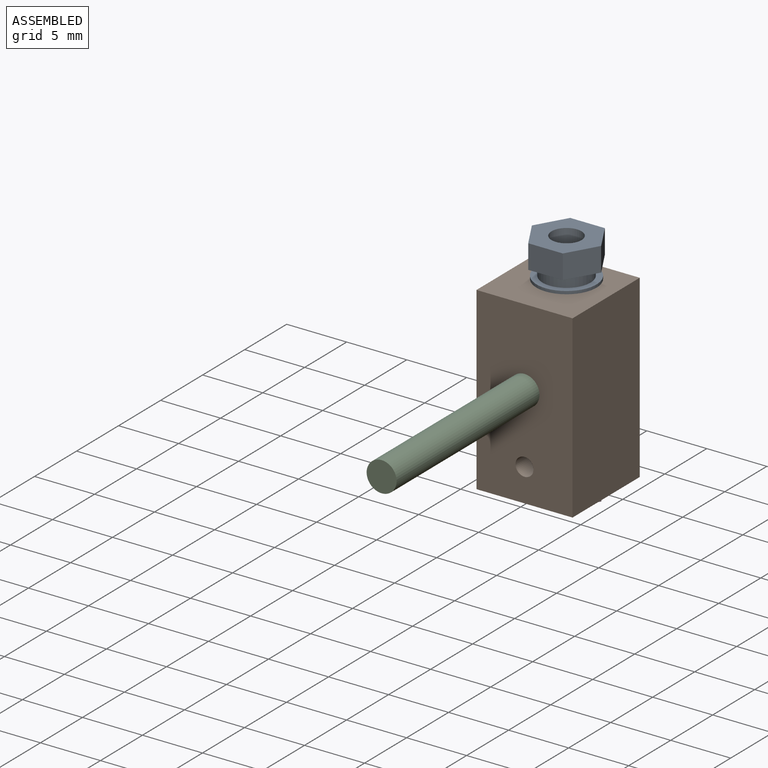
[diagram: assembled view]
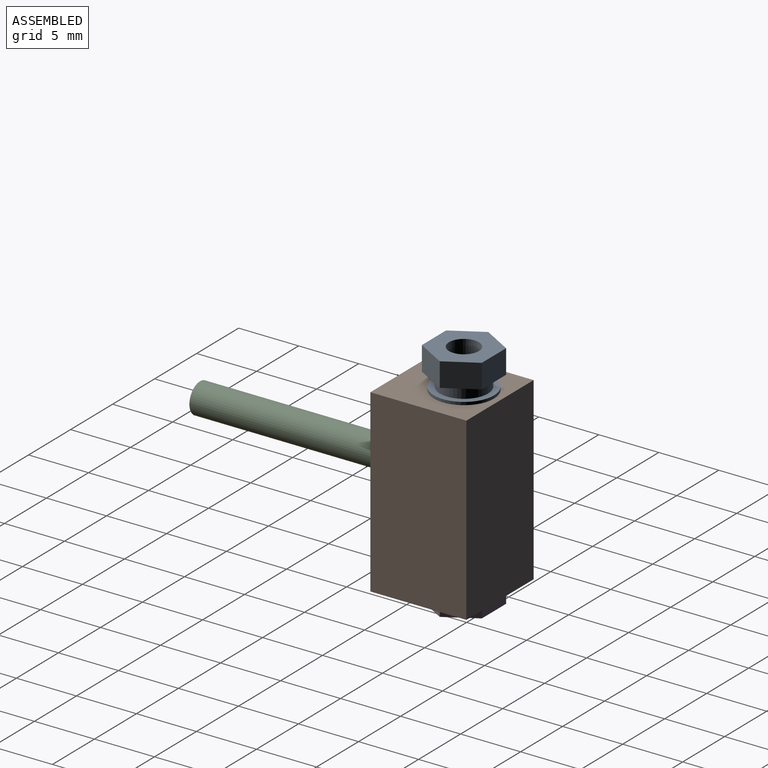
[diagram: assembled view, second angle]
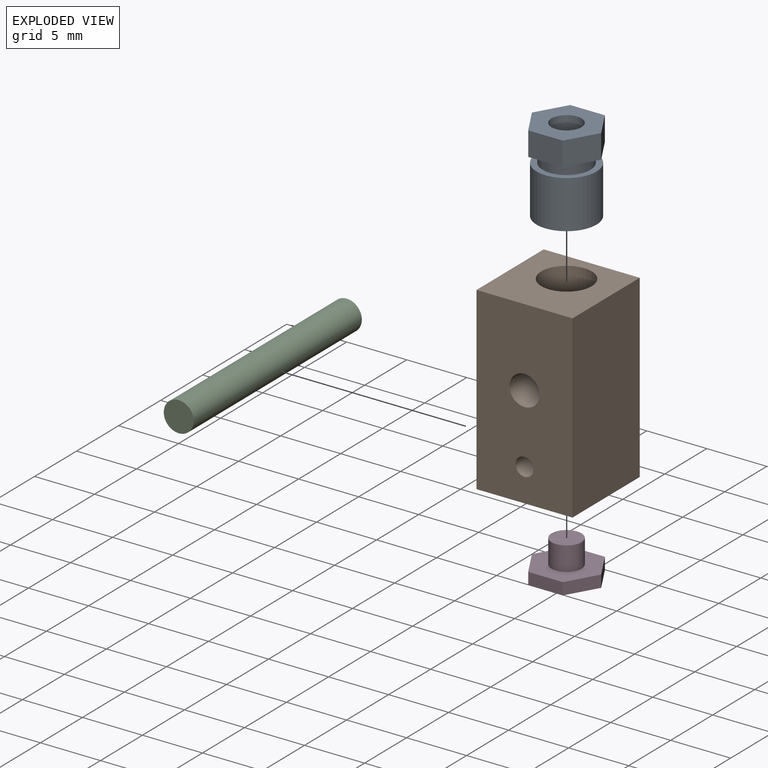
[diagram: exploded view]
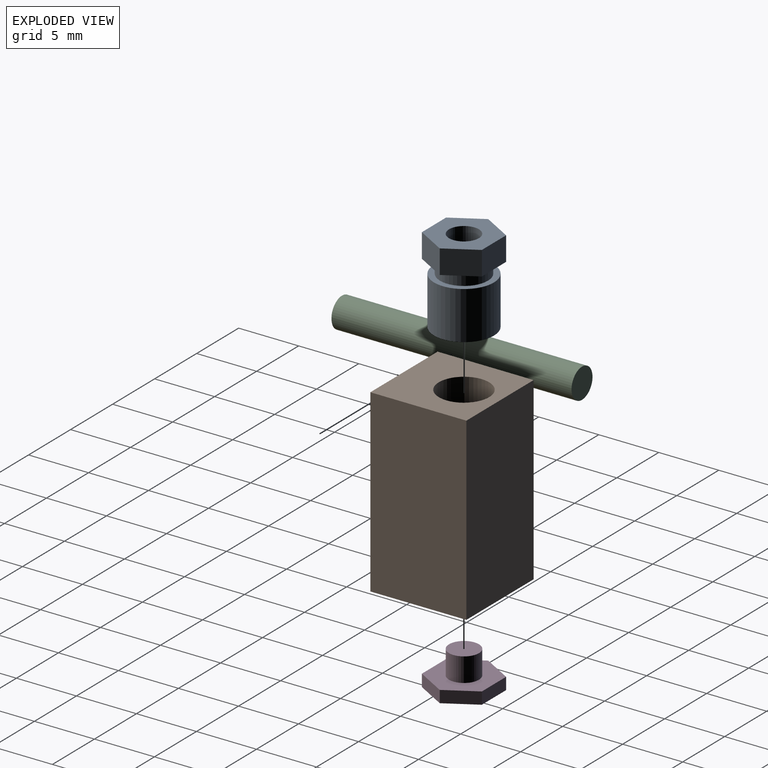
[diagram: exploded view, second angle]
ASSEMBLY  parts=4 mates=3
PART A: 13 faces, bbox 5.8x7x5 mm
  f0: plane 2.89x2mm, normal (0,0,1), area 5.8mm2, adj f1,f5,f6,f7
  f1: plane 2.5x2mm, normal (-0.87,0,0.5), area 5.8mm2, adj f0,f2,f6,f7
  f2: plane 2.5x2mm, normal (-0.87,0,-0.5), area 5.8mm2, adj f1,f3,f6,f7
  f3: plane 2.89x2mm, normal (0,0,-1), area 5.8mm2, adj f2,f4,f6,f7
  f4: plane 2.5x2mm, normal (0.87,0,-0.5), area 5.8mm2, adj f3,f5,f6,f7
  f5: plane 2.5x2mm, normal (0.87,0,0.5), area 5.8mm2, adj f0,f4,f6,f7
  f6: plane 5.77x5mm, normal (0,-1,0), area 9.1mm2, adj f0,f1,f2,f3,f4,f5,f8
  f7: plane 5.77x5mm, normal (0,1,0), area 16.7mm2, adj f0,f1,f2,f3,f4,f5,f12
  f8: cylinder r=2mm len=4mm, axis (0,1,0), area 12.6mm2, adj f6,f11
  f9: cylinder r=2.5mm len=5mm, axis (0,1,0), area 62.8mm2, adj f10,f11
  f10: plane 5x5mm, normal (0,-1,0), area 14.7mm2, adj f9,f12
  f11: plane 5x5mm, normal (0,1,0), area 7.1mm2, adj f8,f9
  f12: cylinder r=1.25mm len=7mm, axis (0,1,0), area 55mm2, adj f7,f10
PART B: 12 faces, bbox 8x8x15 mm
  f0: cylinder r=1.25mm len=9.99mm, axis (0,0,1), area 76.6mm2, adj f6,f7,f9,f11
  f1: plane 15x8mm, normal (-1,0,0), area 120mm2, adj f2,f4,f5,f6
  f2: plane 15x8mm, normal (0,-1,0), area 113.3mm2, adj f1,f3,f5,f6,f10,f11
  f3: plane 15x8mm, normal (1,0,0), area 120mm2, adj f2,f4,f5,f6
  f4: plane 15x8mm, normal (0,1,0), area 120mm2, adj f1,f3,f5,f6
  f5: plane 8x8mm, normal (0,0,1), area 50.1mm2, adj f1,f2,f3,f4,f8
  f6: plane 8x8mm, normal (0,0,-1), area 59.1mm2, adj f0,f1,f2,f3,f4
  f7: cone r=0mm half-angle=59deg, axis (0,0,1), area 10.4mm2, adj f0,f8
  f8: cylinder r=2.1mm len=4.5mm, axis (0,0,1), area 59.4mm2, adj f5,f7
  f9: cone r=0mm half-angle=59deg, axis (0,-1,0), area 5.7mm2, adj f0,f10
  f10: cylinder r=1.25mm len=3mm, axis (0,-1,0), area 23.6mm2, adj f2,f9
  f11: cylinder r=0.75mm len=4mm, axis (0,-1,0), area 18.2mm2, adj f0,f2
PART C: 3 faces, bbox 2.5x20x2.5 mm
  f0: cylinder r=1.25mm len=20mm, axis (0,1,0), area 157.1mm2, adj f1,f2
  f1: plane 2.5x2.5mm, normal (0,-1,0), area 4.9mm2, adj f0
  f2: plane 2.5x2.5mm, normal (0,1,0), area 4.9mm2, adj f0
PART D: 10 faces, bbox 5.8x5x3 mm
  f0: plane 2.89x1mm, normal (0,1,0), area 2.9mm2, adj f1,f5,f6,f7
  f1: plane 2.5x1.44mm, normal (-0.87,0.5,0), area 2.9mm2, adj f0,f2,f6,f7
  f2: plane 2.5x1.44mm, normal (-0.87,-0.5,0), area 2.9mm2, adj f1,f3,f6,f7
  f3: plane 2.89x1mm, normal (0,-1,0), area 2.9mm2, adj f2,f4,f6,f7
  f4: plane 2.5x1.44mm, normal (0.87,-0.5,0), area 2.9mm2, adj f3,f5,f6,f7
  f5: plane 2.5x1.44mm, normal (0.87,0.5,0), area 2.9mm2, adj f0,f4,f6,f7
  f6: plane 5.77x5mm, normal (0,0,1), area 16.7mm2, adj f0,f1,f2,f3,f4,f5,f8
  f7: plane 5.77x5mm, normal (0,0,-1), area 21.7mm2, adj f0,f1,f2,f3,f4,f5
  f8: cylinder r=1.25mm len=2.5mm, axis (0,0,-1), area 15.7mm2, adj f6,f9
  f9: plane 2.5x2.5mm, normal (0,0,1), area 4.9mm2, adj f8
PLACE A rot(axis=(1,0,0),90deg) t=(-0.29,6.58,17.95)mm
PLACE B t=(-4.29,1.58,-0.29)mm
PLACE C t=(-0.29,4.58,8.21)mm
PLACE D t=(-0.29,6.58,-1.29)mm
MATE fastened A.f9 <-> B.f0  axis (0,0,1) through (-0.29,6.58,10.95)mm
MATE fastened D.f8 <-> B.f0  axis (0,0,1) through (-0.29,6.58,-0.29)mm
MATE fastened C.f0 <-> B.f9  axis (0,1,0) through (-0.29,4.58,8.21)mm
